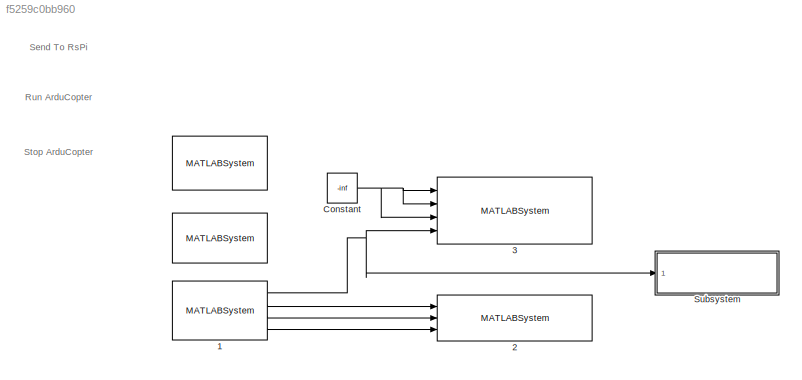
MODEL slx_f5259c0bb960
KIND model
BLOCK [MATLABSystem]   
  MaskDisplay = disp('Gyro');\nport_label('output',1,'x');\nport_label('output',2,'y');\nport_label('output',3,'z');
  MaskType = Gyro
  Ports = [0, 3]
  SimulateUsing = Interpreted execution
  System = Gyro
BLOCK [MATLABSystem]    
  MaskDisplay = disp('Accel');\nport_label('output',1,'x');\nport_label('output',2,'y');\nport_label('output',3,'z');
  MaskType = Accel
  Ports = [0, 3]
  SimulateUsing = Interpreted execution
  System = Accel
BLOCK [MATLABSystem]    1
  MaskDisplay = disp('RC');\nport_label('output',1,'thort');\nport_label('output',2,'yawR');\nport_label('output',3,'pitch');\nport_label('output',4,'roll');
  MaskType = RC
  Ports = [0, 4]
  SimulateUsing = Interpreted execution
  System = RC
BLOCK [MATLABSystem]    2
  MaskDisplay = disp('RateController');\nport_label('input',1,'yaw');\nport_label('input',2,'pitch');\nport_label('input',3,'roll');
  MaskType = RateController
  Ports = [3]
  SimulateUsing = Interpreted execution
  System = RateController
BLOCK [MATLABSystem]    3
  MaskDisplay = disp('Motors');\nport_label('input',1,'roll');\nport_label('input',2,'pitch');\nport_label('input',3,'yaw');\nport_label('input',4,'throttle');
  MaskType = Motors
  Ports = [4]
  SimulateUsing = Interpreted execution
  System = Motors
BLOCK [Constant] Constant
  Value = -inf
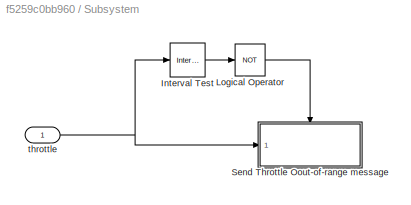
BLOCK [SubSystem] Subsystem
  Ports = [1]
  RequestExecContextInheritance = off
BLOCK [Reference] Subsystem/Interval Test  REF=simulink/Logic and Bit
Operations/Interval Test
  IntervalClosedLeft = on
  IntervalClosedRight = on
  OutDataTypeStr = boolean
  Ports = [1, 1]
  SourceBlock = simulink/Logic and Bit\nOperations/Interval Test
  SourceType = Interval Test
  lowlimit = 1
  uplimit = 0
BLOCK [Logic] Subsystem/Logical Operator
  AllPortsSameDT = off
  Operator = NOT
  OutDataTypeStr = boolean
  Ports = [1, 1]
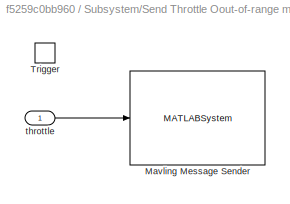
BLOCK [SubSystem] Subsystem/Send Throttle Oout-of-range message
  Ports = [1, 0, 0, 1]
  RequestExecContextInheritance = off
  TreatAsAtomicUnit = on
BLOCK [MATLABSystem] Subsystem/Send Throttle Oout-of-range message/Mavling Message Sender
  MaskDisplay = disp('MavlinkMsg');\nport_label('input',1,'u');
  MaskType = MavlinkMsg
  Message = throttle not between 0 to 1:
  Ports = [1]
  System = MavlinkMsg
BLOCK [TriggerPort] Subsystem/Send Throttle Oout-of-range message/Trigger
  Ports = []
  StatesWhenEnabling = held
BLOCK [Inport] Subsystem/Send Throttle Oout-of-range message/throttle
  IconDisplay = Port number
BLOCK [Inport] Subsystem/throttle
  IconDisplay = Port number
ANNOTATION (root): Run ArduCopter
ANNOTATION (root): Send To RsPi
ANNOTATION (root): Stop ArduCopter
NET    1:1 ->    3:4, Subsystem:1
LINE    1:2 ->    2:1
LINE    1:3 ->    2:2
LINE    1:4 ->    2:3
NET Constant:1 ->    3:1,    3:2,    3:3
LINE Subsystem/Interval Test:1 -> Subsystem/Logical Operator:1
LINE Subsystem/Logical Operator:1 -> Subsystem/Send Throttle Oout-of-range message:trigger
LINE Subsystem/Send Throttle Oout-of-range message/throttle:1 -> Subsystem/Send Throttle Oout-of-range message/Mavling Message Sender:1
NET Subsystem/throttle:1 -> Subsystem/Interval Test:1, Subsystem/Send Throttle Oout-of-range message:1
note: NET lines group one-source signal fan-out (src -> all destinations, sorted); 1:1 wires keep LINE
